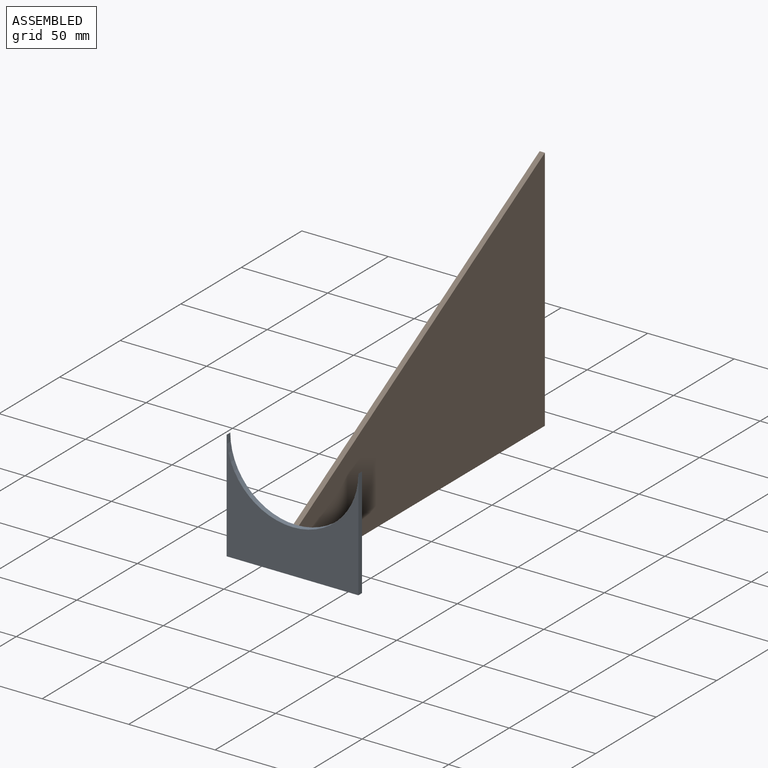
[diagram: assembled view]
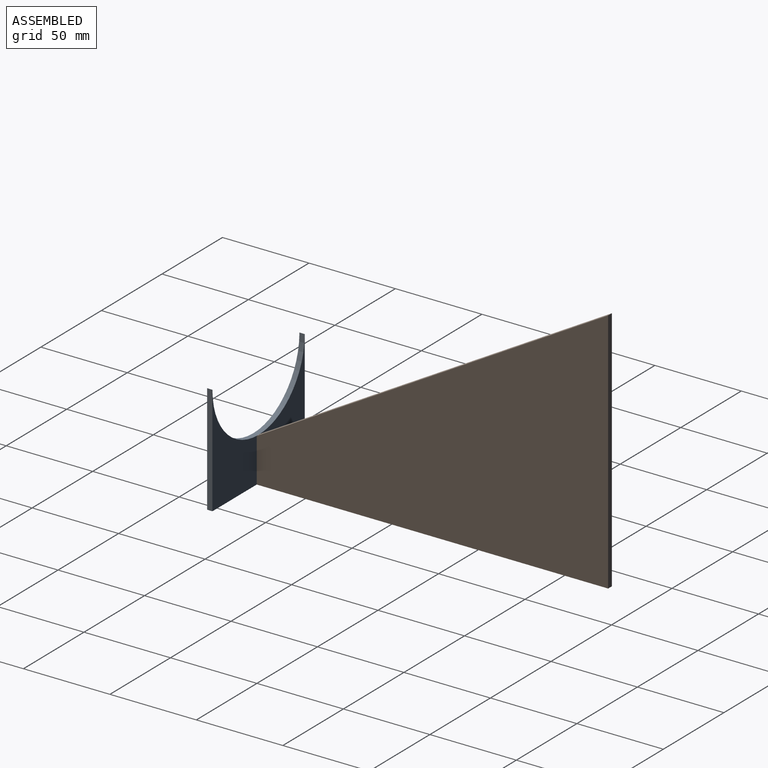
[diagram: assembled view, second angle]
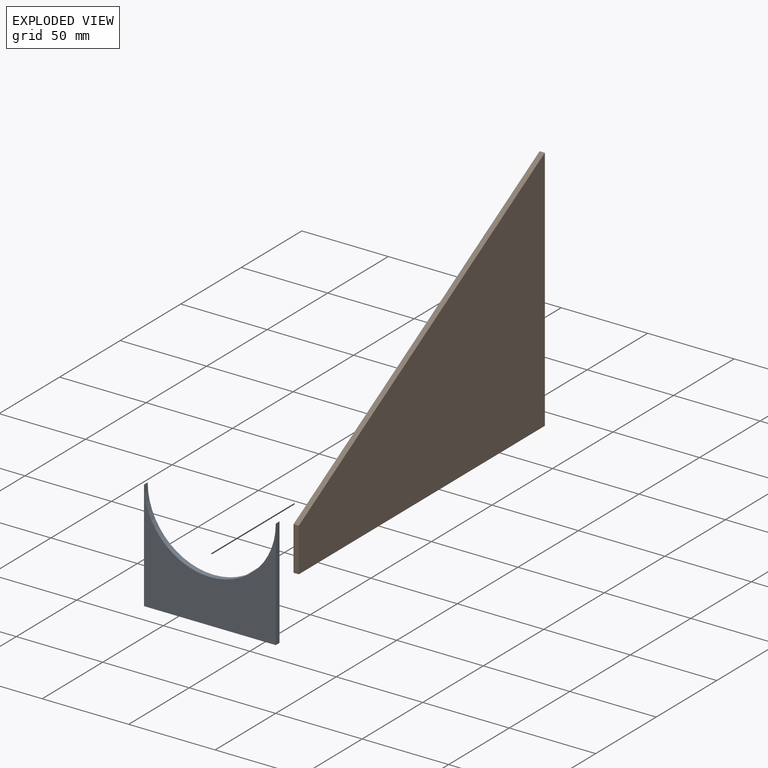
[diagram: exploded view]
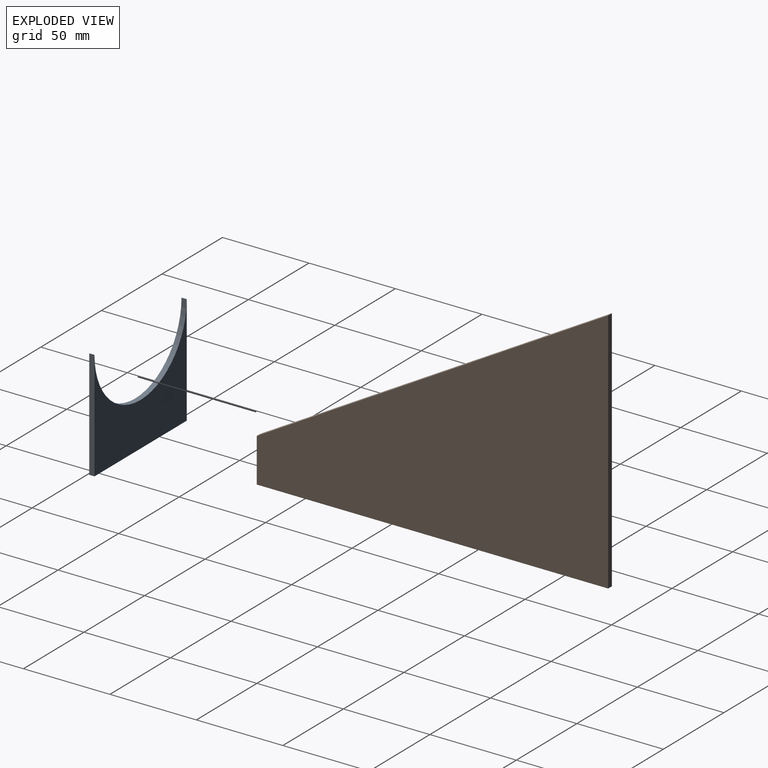
[diagram: exploded view, second angle]
ASSEMBLY  parts=2 mates=2
PART A: 6 faces, bbox 76.2x3x63.5 mm
  f0: cylinder r=38.1mm len=76.2mm, axis (0,1,0), area 364.8mm2, adj f1,f3,f4,f5
  f1: plane 63.5x3.05mm, normal (1,0,0), area 193.5mm2, adj f0,f2,f4,f5
  f2: plane 76.2x3.05mm, normal (0,0,1), area 232.3mm2, adj f1,f3,f4,f5
  f3: plane 63.5x3.05mm, normal (-1,0,0), area 193.5mm2, adj f0,f2,f4,f5
  f4: plane 76.2x63.5mm, normal (0,-1,0), area 2558.5mm2, adj f0,f1,f2,f3
  f5: plane 76.2x63.5mm, normal (0,1,0), area 2558.5mm2, adj f0,f1,f2,f3
PART B: 6 faces, bbox 3x203.2x142.7 mm
  f0: plane 25.4x3.05mm, normal (0,-1,0), area 77.4mm2, adj f1,f3,f4,f5
  f1: plane 203.2x3.05mm, normal (0,0,-1), area 619.4mm2, adj f0,f2,f4,f5
  f2: plane 142.72x3.05mm, normal (0,1,0), area 435mm2, adj f1,f3,f4,f5
  f3: plane 203.2x117.32mm, normal (0,-0.5,0.87), area 715.2mm2, adj f0,f2,f4,f5
  f4: plane 203.2x142.72mm, normal (1,0,0), area 17080.7mm2, adj f0,f1,f2,f3
  f5: plane 203.2x142.72mm, normal (-1,0,0), area 17080.7mm2, adj f0,f1,f2,f3
PLACE A rot(axis=(0,-1,0),180deg) t=(-27.07,-73.01,32.6)mm
PLACE B t=(-28.59,3.26,1.14)mm
MATE planar A.f5 <-> B.f0  axis (0,1,0) through (-27.07,-73.01,-13.03)mm
MATE planar B.f1 <-> A.f2  axis (0,0,-1) through (-27.07,-73.01,-30.9)mm
